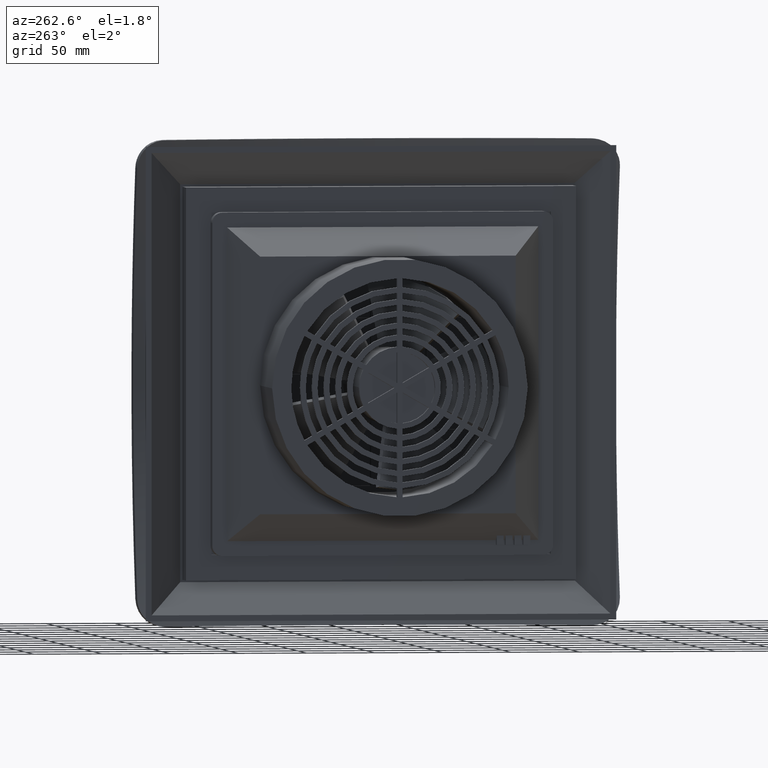
[diagram: clean part render]
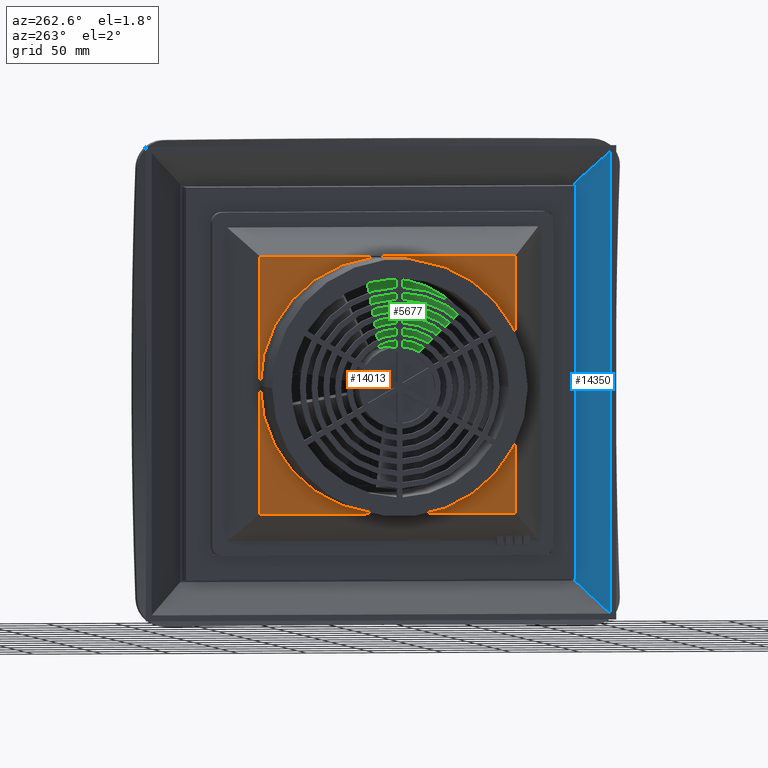
[diagram: same view with three faces highlighted in distinct colors, each labeled with its STEP entity id]
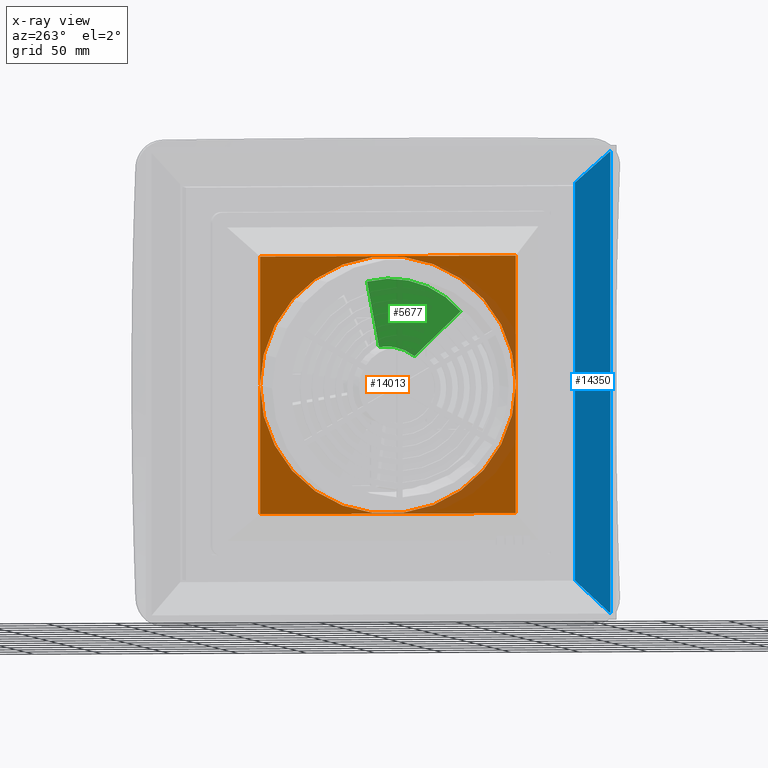
[diagram: x-ray of the same camera — body ghosted, the three highlighted faces saturated]
A machine part, auxiliary view with three faces highlighted in distinct colors.
The next image is the same camera in x-ray (body ghosted, the three faces saturated) — at least one of them is partly hidden behind the body in this view.
Their STEP definitions:

[orange] entity #14013 — the highlighted planar face has unit normal (1, 0, 0).
#314 = CARTESIAN_POINT ( 'NONE',  ( -1.539370078740157410, 3.691338582677165636, 3.691338582677165636 ) ) ;
#915 = EDGE_CURVE ( 'NONE', #11264, #2027, #1543, .T. ) ;
#1456 = DIRECTION ( 'NONE',  ( -1.000000000000000000, -0.000000000000000000, -0.000000000000000000 ) ) ;
#1543 = CIRCLE ( 'NONE', #10667, 3.690944881889763884 ) ;
#1654 = AXIS2_PLACEMENT_3D ( 'NONE', #12151, #10882, #12224 ) ;
#1675 = DIRECTION ( 'NONE',  ( -4.244402010200942432E-17, -6.061634270680701538E-17, -1.000000000000000000 ) ) ;
#1833 = CARTESIAN_POINT ( 'NONE',  ( -1.539370078740157632, -3.691338582677165636, -3.691338582677165636 ) ) ;
#1917 = VECTOR ( 'NONE', #2882, 39.37007874015748143 ) ;
#2027 = VERTEX_POINT ( 'NONE', #8551 ) ;
#2108 = FACE_BOUND ( 'NONE', #3336, .T. ) ;
#2473 = LINE ( 'NONE', #7391, #13063 ) ;
#2882 = DIRECTION ( 'NONE',  ( -4.244402010200942432E-17, -1.000000000000000000, 6.061634270680701538E-17 ) ) ;
#3214 = VECTOR ( 'NONE', #1675, 39.37007874015748143 ) ;
#3269 = ORIENTED_EDGE ( 'NONE', *, *, #14676, .F. ) ;
#3336 = EDGE_LOOP ( 'NONE', ( #5833, #7558 ) ) ;
#3339 = VERTEX_POINT ( 'NONE', #14901 ) ;
#3510 = DIRECTION ( 'NONE',  ( 2.876883885136059879E-17, 1.000000000000000000, 4.108615986185575728E-17 ) ) ;
#4314 = EDGE_CURVE ( 'NONE', #9218, #3339, #2473, .T. ) ;
#4317 = EDGE_CURVE ( 'NONE', #2027, #11264, #7742, .T. ) ;
#4354 = ORIENTED_EDGE ( 'NONE', *, *, #4314, .F. ) ;
#4453 = VERTEX_POINT ( 'NONE', #314 ) ;
#5082 = CARTESIAN_POINT ( 'NONE',  ( -1.539370078740157854, -3.691338582677165636, -3.691338582677165636 ) ) ;
#5682 = CARTESIAN_POINT ( 'NONE',  ( -1.539370078740157632, 3.691338582677165636, 1.317657151573448914E-16 ) ) ;
#5750 = VECTOR ( 'NONE', #8214, 39.37007874015748143 ) ;
#5768 = CARTESIAN_POINT ( 'NONE',  ( -1.539370078740157632, -2.819616565415823156E-16, 4.652263501369803072E-16 ) ) ;
#5833 = ORIENTED_EDGE ( 'NONE', *, *, #4317, .F. ) ;
#6954 = PLANE ( 'NONE',  #14077 ) ;
#7164 = EDGE_LOOP ( 'NONE', ( #4354, #14355, #3269, #7899 ) ) ;
#7338 = CARTESIAN_POINT ( 'NONE',  ( -1.539370078740157632, 1.885122379309248067E-16, -9.425611896546260056E-17 ) ) ;
#7391 = CARTESIAN_POINT ( 'NONE',  ( -1.539370078740157632, 3.691338582677165636, -3.691338582677165636 ) ) ;
#7558 = ORIENTED_EDGE ( 'NONE', *, *, #915, .F. ) ;
#7742 = CIRCLE ( 'NONE', #1654, 3.690944881889763884 ) ;
#7899 = ORIENTED_EDGE ( 'NONE', *, *, #15613, .F. ) ;
#8214 = DIRECTION ( 'NONE',  ( 2.876883885136065426E-17, -4.108615986185583123E-17, 1.000000000000000000 ) ) ;
#8551 = CARTESIAN_POINT ( 'NONE',  ( -1.539370078740157632, -3.690944881889763884, 5.837594563498781160E-16 ) ) ;
#8775 = CARTESIAN_POINT ( 'NONE',  ( -1.539370078740157410, -3.691338582677165636, 3.691338582677165636 ) ) ;
#8780 = EDGE_CURVE ( 'NONE', #14086, #9218, #11513, .T. ) ;
#8917 = CARTESIAN_POINT ( 'NONE',  ( -1.539370078740157632, -3.691338582677165636, 3.691338582677165636 ) ) ;
#9218 = VERTEX_POINT ( 'NONE', #5082 ) ;
#9357 = CARTESIAN_POINT ( 'NONE',  ( -1.539370078740157632, 3.690944881889763884, -3.202613107372428394E-16 ) ) ;
#9418 = DIRECTION ( 'NONE',  ( 0.000000000000000000, 0.000000000000000000, -1.000000000000000000 ) ) ;
#9486 = LINE ( 'NONE', #5682, #5750 ) ;
#9726 = FACE_OUTER_BOUND ( 'NONE', #7164, .T. ) ;
#10603 = DIRECTION ( 'NONE',  ( 1.000000000000000000, 0.000000000000000000, 0.000000000000000000 ) ) ;
#10667 = AXIS2_PLACEMENT_3D ( 'NONE', #7338, #1456, #12171 ) ;
#10882 = DIRECTION ( 'NONE',  ( -1.000000000000000000, -0.000000000000000000, -0.000000000000000000 ) ) ;
#11264 = VERTEX_POINT ( 'NONE', #9357 ) ;
#11513 = LINE ( 'NONE', #1833, #3214 ) ;
#12151 = CARTESIAN_POINT ( 'NONE',  ( -1.539370078740157632, 1.885122379309248067E-16, -9.425611896546260056E-17 ) ) ;
#12171 = DIRECTION ( 'NONE',  ( 0.000000000000000000, 0.000000000000000000, -1.000000000000000000 ) ) ;
#12224 = DIRECTION ( 'NONE',  ( 0.000000000000000000, 0.000000000000000000, -1.000000000000000000 ) ) ;
#12559 = LINE ( 'NONE', #8917, #1917 ) ;
#13063 = VECTOR ( 'NONE', #3510, 39.37007874015748143 ) ;
#14013 = ADVANCED_FACE ( 'NONE', ( #9726, #2108 ), #6954, .F. ) ;
#14077 = AXIS2_PLACEMENT_3D ( 'NONE', #5768, #10603, #9418 ) ;
#14086 = VERTEX_POINT ( 'NONE', #8775 ) ;
#14355 = ORIENTED_EDGE ( 'NONE', *, *, #8780, .F. ) ;
#14676 = EDGE_CURVE ( 'NONE', #4453, #14086, #12559, .T. ) ;
#14901 = CARTESIAN_POINT ( 'NONE',  ( -1.539370078740157410, 3.691338582677165636, -3.691338582677165636 ) ) ;
#15613 = EDGE_CURVE ( 'NONE', #3339, #4453, #9486, .T. ) ;

[blue] entity #14350 — the highlighted planar face has unit normal (0.766, -0.6428, 0).
#118 = DIRECTION ( 'NONE',  ( 0.5102736053747365386, 0.6081204024113433526, -0.6081204024113425755 ) ) ;
#151 = VECTOR ( 'NONE', #2471, 39.37007874015748854 ) ;
#344 = EDGE_LOOP ( 'NONE', ( #4612, #14172, #12710, #13712 ) ) ;
#650 = VECTOR ( 'NONE', #3912, 39.37007874015748143 ) ;
#1130 = PLANE ( 'NONE',  #12815 ) ;
#1211 = DIRECTION ( 'NONE',  ( 0.7660444431189777914, -0.6427876096865398070, 4.690514461769129471E-17 ) ) ;
#1363 = LINE ( 'NONE', #2491, #650 ) ;
#2127 = EDGE_CURVE ( 'NONE', #6609, #10157, #6160, .T. ) ;
#2368 = VERTEX_POINT ( 'NONE', #5431 ) ;
#2470 = CARTESIAN_POINT ( 'NONE',  ( 0.7759842519685061779, -5.699652035038111464, -6.624434055118110010 ) ) ;
#2471 = DIRECTION ( 'NONE',  ( -0.5102736053747355394, -0.6081204024113430195, -0.6081204024113436857 ) ) ;
#2491 = CARTESIAN_POINT ( 'NONE',  ( -1.622464806874991877E-15, -6.624434055118110010, 1.500430258047457004E-15 ) ) ;
#3912 = DIRECTION ( 'NONE',  ( -6.123031769111889989E-17, 1.499660721822135524E-32, 1.000000000000000000 ) ) ;
#4612 = ORIENTED_EDGE ( 'NONE', *, *, #14914, .T. ) ;
#5004 = LINE ( 'NONE', #2470, #5756 ) ;
#5431 = CARTESIAN_POINT ( 'NONE',  ( -1.341097031895495278E-15, -6.624434055118110010, -6.624434055118110010 ) ) ;
#5528 = CARTESIAN_POINT ( 'NONE',  ( 0.7759842519685048456, -5.699652035038111464, -5.699652035038110576 ) ) ;
#5756 = VECTOR ( 'NONE', #9617, 39.37007874015748143 ) ;
#6039 = CARTESIAN_POINT ( 'NONE',  ( 0.7759842519685041795, -5.699652035038110576, -5.699652035038109688 ) ) ;
#6055 = CARTESIAN_POINT ( 'NONE',  ( -1.216848605156248197E-15, -6.624434055118110010, -6.624434055118110010 ) ) ;
#6160 = LINE ( 'NONE', #10996, #10692 ) ;
#6609 = VERTEX_POINT ( 'NONE', #9544 ) ;
#9042 = EDGE_CURVE ( 'NONE', #13868, #10157, #5004, .T. ) ;
#9544 = CARTESIAN_POINT ( 'NONE',  ( -1.980953335357461043E-15, -6.624434055118110010, 6.624434055118114451 ) ) ;
#9555 = FACE_OUTER_BOUND ( 'NONE', #344, .T. ) ;
#9617 = DIRECTION ( 'NONE',  ( -3.593142538807444144E-17, 3.015004579080725174E-17, 1.000000000000000000 ) ) ;
#10157 = VERTEX_POINT ( 'NONE', #14069 ) ;
#10692 = VECTOR ( 'NONE', #118, 39.37007874015748854 ) ;
#10996 = CARTESIAN_POINT ( 'NONE',  ( -2.028081008593744432E-15, -6.624434055118110010, 6.624434055118110010 ) ) ;
#12087 = DIRECTION ( 'NONE',  ( 0.6427876096865396960, 0.7660444431189776804, 0.000000000000000000 ) ) ;
#12298 = LINE ( 'NONE', #6039, #151 ) ;
#12710 = ORIENTED_EDGE ( 'NONE', *, *, #2127, .T. ) ;
#12815 = AXIS2_PLACEMENT_3D ( 'NONE', #6055, #1211, #12087 ) ;
#13712 = ORIENTED_EDGE ( 'NONE', *, *, #9042, .F. ) ;
#13868 = VERTEX_POINT ( 'NONE', #5528 ) ;
#14069 = CARTESIAN_POINT ( 'NONE',  ( 0.7759842519685041795, -5.699652035038111464, 5.699652035038115017 ) ) ;
#14172 = ORIENTED_EDGE ( 'NONE', *, *, #14508, .T. ) ;
#14350 = ADVANCED_FACE ( 'NONE', ( #9555 ), #1130, .F. ) ;
#14508 = EDGE_CURVE ( 'NONE', #2368, #6609, #1363, .T. ) ;
#14914 = EDGE_CURVE ( 'NONE', #13868, #2368, #12298, .T. ) ;

[green] entity #5677 — the highlighted planar face has unit normal (-0.866, 0.4755, 0.1545).
#113 = CARTESIAN_POINT ( 'NONE',  ( -0.8499953883922326536, 0.5137225628236354869, 2.938020669173155408 ) ) ;
#623 = DIRECTION ( 'NONE',  ( -0.8660254037844387076, 0.4755282581475767101, 0.1545084971874739754 ) ) ;
#1570 = CARTESIAN_POINT ( 'NONE',  ( -1.902816645104039806, -0.7187636510889603425, 0.8301240978360667766 ) ) ;
#1578 = VERTEX_POINT ( 'NONE', #6744 ) ;
#1982 = CARTESIAN_POINT ( 'NONE',  ( -1.610791402171102504, -0.4981193278117874157, 1.787862156918669454 ) ) ;
#3711 = LINE ( 'NONE', #14360, #5450 ) ;
#3801 = LINE ( 'NONE', #1570, #14888 ) ;
#3852 = CARTESIAN_POINT ( 'NONE',  ( -1.902816645104039139, -0.7187636510889592323, 0.8301240978360678868 ) ) ;
#4038 = DIRECTION ( 'NONE',  ( -0.8660254037844387076, 0.4755282581475767656, 0.1545084971874739477 ) ) ;
#4412 = ORIENTED_EDGE ( 'NONE', *, *, #6063, .T. ) ;
#5225 = DIRECTION ( 'NONE',  ( -0.2500000000000002776, -0.6794361191029840708, 0.6898308198814224745 ) ) ;
#5280 = CARTESIAN_POINT ( 'NONE',  ( -1.715502944235536731, -0.4525304731212981268, 1.060642319793337229 ) ) ;
#5450 = VECTOR ( 'NONE', #6015, 39.37007874015748854 ) ;
#5677 = ADVANCED_FACE ( 'NONE', ( #11663 ), #13901, .T. ) ;
#6015 = DIRECTION ( 'NONE',  ( 0.2500000000000003886, 0.1442029844433481423, 0.9574473872112404527 ) ) ;
#6063 = EDGE_CURVE ( 'NONE', #7985, #1578, #3801, .T. ) ;
#6307 = CIRCLE ( 'NONE', #9354, 3.043184055118114628 ) ;
#6744 = CARTESIAN_POINT ( 'NONE',  ( -2.371587415949814481, -1.992762824258431209, 2.123614198592017388 ) ) ;
#7437 = CARTESIAN_POINT ( 'NONE',  ( -1.336950419684436175, 0.2328410876154779208, 1.073085379572808140 ) ) ;
#7481 = EDGE_LOOP ( 'NONE', ( #9944, #11826, #11547, #4412 ) ) ;
#7985 = VERTEX_POINT ( 'NONE', #11984 ) ;
#8697 = CARTESIAN_POINT ( 'NONE',  ( -1.512600193531919546, -0.1113133967309341416, 1.147760988772575264 ) ) ;
#9354 = AXIS2_PLACEMENT_3D ( 'NONE', #12600, #4038, #11251 ) ;
#9944 = ORIENTED_EDGE ( 'NONE', *, *, #10722, .T. ) ;
#10124 = CARTESIAN_POINT ( 'NONE',  ( -1.336950419684436175, 0.2328410876154779208, 1.073085379572808140 ) ) ;
#10722 = EDGE_CURVE ( 'NONE', #1578, #14080, #6307, .T. ) ;
#11019 =( BOUNDED_CURVE ( )  B_SPLINE_CURVE ( 3, ( #3852, #5280, #8697, #10124 ),
 .UNSPECIFIED., .F., .T. ) 
 B_SPLINE_CURVE_WITH_KNOTS ( ( 4, 4 ),
 ( 1.171330970031574381, 2.098626188033186235 ),
 .UNSPECIFIED. ) 
 CURVE ( )  GEOMETRIC_REPRESENTATION_ITEM ( )  RATIONAL_B_SPLINE_CURVE ( ( 1.000000000000000000, 0.9296181273332773110, 0.9296181273332773110, 1.000000000000000000 ) ) 
 REPRESENTATION_ITEM ( '' )  );
#11085 = AXIS2_PLACEMENT_3D ( 'NONE', #1982, #623, #14136 ) ;
#11251 = DIRECTION ( 'NONE',  ( -0.4813080654835481531, -0.8765515079563119816, 0.000000000000000000 ) ) ;
#11417 = VERTEX_POINT ( 'NONE', #7437 ) ;
#11547 = ORIENTED_EDGE ( 'NONE', *, *, #14120, .F. ) ;
#11663 = FACE_OUTER_BOUND ( 'NONE', #7481, .T. ) ;
#11826 = ORIENTED_EDGE ( 'NONE', *, *, #13494, .F. ) ;
#11984 = CARTESIAN_POINT ( 'NONE',  ( -1.902816645104039139, -0.7187636510889592323, 0.8301240978360678868 ) ) ;
#12600 = CARTESIAN_POINT ( 'NONE',  ( -1.610791402170775655, 0.07488633986716962398, 0.02433204679685332592 ) ) ;
#13494 = EDGE_CURVE ( 'NONE', #11417, #14080, #3711, .T. ) ;
#13901 = PLANE ( 'NONE',  #11085 ) ;
#14080 = VERTEX_POINT ( 'NONE', #113 ) ;
#14120 = EDGE_CURVE ( 'NONE', #7985, #11417, #11019, .T. ) ;
#14136 = DIRECTION ( 'NONE',  ( -0.4813080654835480421, -0.8765515079563119816, 0.000000000000000000 ) ) ;
#14360 = CARTESIAN_POINT ( 'NONE',  ( -1.336950419684436175, 0.2328410876154775322, 1.073085379572807030 ) ) ;
#14888 = VECTOR ( 'NONE', #5225, 39.37007874015748143 ) ;